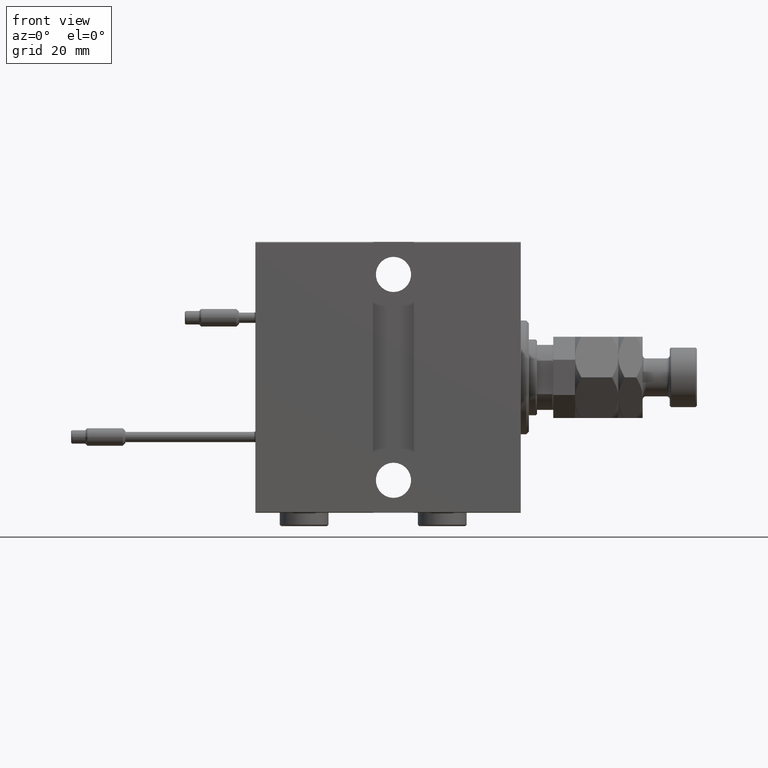
[diagram: clean part render]
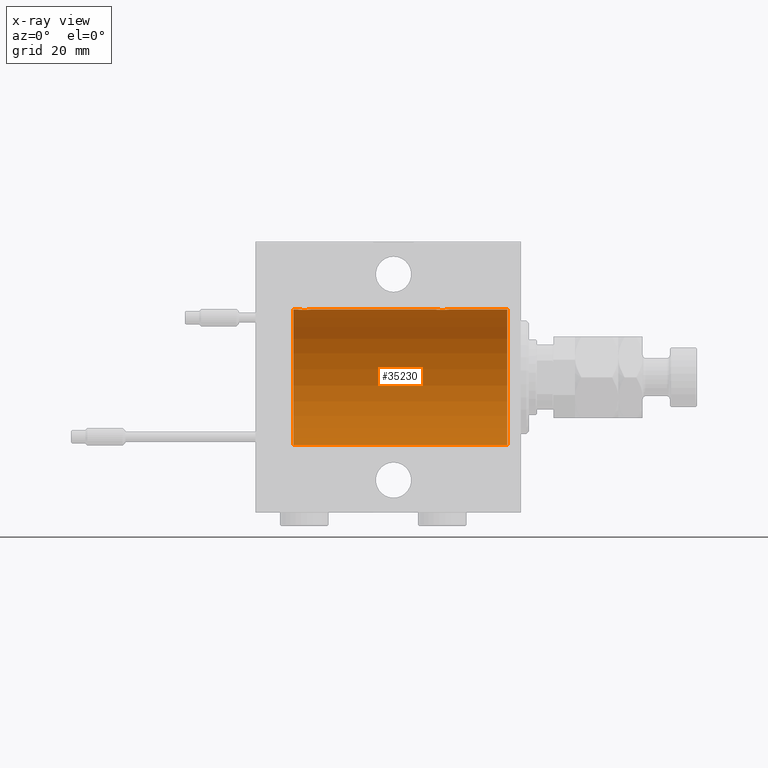
[diagram: x-ray — body ghosted, one internal face saturated and labeled with its STEP entity id]
A machine part, front view, then the same camera in x-ray: the body is ghosted and one INTERNAL B-rep face — a face not visible from any outside direction — is saturated and labeled: STEP entity #35230.
In plain terms, the highlighted cylindrical surface (partial cylindrical patch) has radius 25 mm, axis along (1, 0, -0).
Its self-contained STEP definition (entity closure, byte-faithful):
#485 = CARTESIAN_POINT ( 'NONE',  ( 30.98538033717094464, -1.528152964861313023, 24.95362559291378801 ) ) ;
#1559 = CARTESIAN_POINT ( 'NONE',  ( 82.50000000000001421, 2.791216707898424283E-15, 25.00000000000000000 ) ) ;
#1817 = DIRECTION ( 'NONE',  ( -1.000000000000000000, 0.000000000000000000, 0.000000000000000000 ) ) ;
#1891 = ORIENTED_EDGE ( 'NONE', *, *, #47495, .F. ) ;
#3200 = CARTESIAN_POINT ( 'NONE',  ( 5.000000000000004441, 3.061616997868382254E-15, -25.00000000000000000 ) ) ;
#3447 = CARTESIAN_POINT ( 'NONE',  ( 28.35095609830904095, -2.419770561643911133, 24.88263927071751169 ) ) ;
#3454 = CARTESIAN_POINT ( 'NONE',  ( 77.50000000000001421, -1.940163953345817485E-23, 25.00000000000000000 ) ) ;
#5050 = CARTESIAN_POINT ( 'NONE',  ( 78.74616804575498463, -2.169003991399871989, 24.90589728951138682 ) ) ;
#5309 = CARTESIAN_POINT ( 'NONE',  ( 79.83293504821945419, -2.499872792855080572, 24.87469871246082675 ) ) ;
#5462 = DIRECTION ( 'NONE',  ( 0.000000000000000000, 0.000000000000000000, 1.000000000000000000 ) ) ;
#5646 = B_SPLINE_CURVE_WITH_KNOTS ( 'NONE', 3,
 ( #3454, #19795, #29168, #33982, #29435, #24889, #50051, #37996, #21927, #9337, #17641, #5050, #8543, #9076, #50318, #8804, #5309, #50582, #29957, #25683, #33716, #25158, #42007, #13629, #21389, #42283, #13893, #49779, #13369, #46299, #41215, #1559 ),
 .UNSPECIFIED., .F., .F.,
 ( 4, 2, 2, 2, 2, 2, 2, 2, 2, 2, 2, 2, 2, 2, 2, 4 ),
 ( 0.007821024441662294616, 0.008309723826317902753, 0.008798423210973510891, 0.009287122595629119029, 0.009775821980284727167, 0.01026452136494033530, 0.01075322074959594344, 0.01124192013425155158, 0.01173061951890715972, 0.01221931890356276786, 0.01270801828821837599, 0.01319671767287398413, 0.01368541705752959400, 0.01417411644218520041, 0.01466281582684080854, 0.01564021459615200921 ),
 .UNSPECIFIED. ) ;
#6952 = CARTESIAN_POINT ( 'NONE',  ( 26.50000000000001066, -0.1631750940176202591, 25.00000000000001066 ) ) ;
#8272 = CARTESIAN_POINT ( 'NONE',  ( 31.43349355239748988, -0.6588655613945876288, 24.99312727339970408 ) ) ;
#8543 = CARTESIAN_POINT ( 'NONE',  ( 78.88963203491135801, -2.245863995402899160, 24.89899750494197050 ) ) ;
#8804 = CARTESIAN_POINT ( 'NONE',  ( 79.67052319885733880, -2.483544361357268304, 24.87635491893502149 ) ) ;
#8922 = VECTOR ( 'NONE', #37474, 1000.000000000000000 ) ;
#9076 = CARTESIAN_POINT ( 'NONE',  ( 79.19211657594196652, -2.371528299825746089, 24.88734287464371420 ) ) ;
#9337 = CARTESIAN_POINT ( 'NONE',  ( 78.34616663850664509, -1.881857718844719640, 24.92933960374833902 ) ) ;
#9561 = CARTESIAN_POINT ( 'NONE',  ( 26.50000000000000355, -1.940558383798427991E-23, 25.00000000000000000 ) ) ;
#9569 = CARTESIAN_POINT ( 'NONE',  ( 31.50000000000000000, -3.363311788663921560E-15, 25.00000000000000000 ) ) ;
#10261 = ORIENTED_EDGE ( 'NONE', *, *, #45151, .T. ) ;
#12839 = LINE ( 'NONE', #45500, #8922 ) ;
#13093 = CARTESIAN_POINT ( 'NONE',  ( 31.50000000000000000, -3.363311788663921560E-15, 25.00000000000000000 ) ) ;
#13118 = CARTESIAN_POINT ( 'NONE',  ( 5.000000000000004441, 0.000000000000000000, 25.00000000000000000 ) ) ;
#13207 = ORIENTED_EDGE ( 'NONE', *, *, #42633, .T. ) ;
#13369 = CARTESIAN_POINT ( 'NONE',  ( 82.24606379094068132, -1.109818057797408608, 24.97580694515542277 ) ) ;
#13468 = DIRECTION ( 'NONE',  ( -1.000000000000000000, -0.000000000000000000, -0.000000000000000000 ) ) ;
#13629 = CARTESIAN_POINT ( 'NONE',  ( 81.52256774340189338, -1.989585286700241484, 24.92087098724765681 ) ) ;
#13860 = EDGE_CURVE ( 'NONE', #23024, #46909, #15385, .T. ) ;
#13893 = CARTESIAN_POINT ( 'NONE',  ( 81.98538033717099438, -1.528152964861306806, 24.95362559291379156 ) ) ;
#14294 = VERTEX_POINT ( 'NONE', #9569 ) ;
#15264 = CARTESIAN_POINT ( 'NONE',  ( 26.57985090779071413, -0.6480119923854232855, 24.99212088949390775 ) ) ;
#15385 = CIRCLE ( 'NONE', #51327, 25.00000000000000000 ) ;
#15834 = DIRECTION ( 'NONE',  ( -1.000000000000000000, 0.000000000000000000, 0.000000000000000000 ) ) ;
#16050 = CARTESIAN_POINT ( 'NONE',  ( 27.01250184165601453, -1.525407911884367085, 24.95379469572361941 ) ) ;
#16579 = CARTESIAN_POINT ( 'NONE',  ( 31.24606379094068132, -1.109818057797417712, 24.97580694515542632 ) ) ;
#17100 = CARTESIAN_POINT ( 'NONE',  ( 30.88185954148646317, -1.653834020452940479, 24.94550385189585739 ) ) ;
#17361 = CARTESIAN_POINT ( 'NONE',  ( 29.16323589638542302, -2.500125740978195843, 24.87467329022545570 ) ) ;
#17641 = CARTESIAN_POINT ( 'NONE',  ( 78.47463817756926119, -1.987446652080266496, 24.92104239223421303 ) ) ;
#18026 = VECTOR ( 'NONE', #13468, 1000.000000000000000 ) ;
#18688 = CARTESIAN_POINT ( 'NONE',  ( 84.00000000000000000, 0.000000000000000000, 0.000000000000000000 ) ) ;
#19388 = VECTOR ( 'NONE', #25873, 1000.000000000000000 ) ;
#19539 = CARTESIAN_POINT ( 'NONE',  ( 27.11587617213529100, -1.651251241585102836, 24.94567559498349141 ) ) ;
#19795 = CARTESIAN_POINT ( 'NONE',  ( 77.50000000000004263, -0.1631750940176218967, 25.00000000000000355 ) ) ;
#20077 = EDGE_LOOP ( 'NONE', ( #40749, #37586, #46266, #32966, #13207, #1891, #10261, #26867 ) ) ;
#20119 = CARTESIAN_POINT ( 'NONE',  ( 84.00000000000000000, 0.000000000000000000, 25.00000000000000000 ) ) ;
#21389 = CARTESIAN_POINT ( 'NONE',  ( 81.65121133559114242, -1.884161199660608688, 24.92916496727982434 ) ) ;
#21689 = AXIS2_PLACEMENT_3D ( 'NONE', #18688, #1817, #51368 ) ;
#21927 = CARTESIAN_POINT ( 'NONE',  ( 78.11587617213530166, -1.651251241585104834, 24.94567559498348785 ) ) ;
#23024 = VERTEX_POINT ( 'NONE', #3200 ) ;
#23832 = CARTESIAN_POINT ( 'NONE',  ( 28.19211657594193809, -2.371528299825748753, 24.88734287464371064 ) ) ;
#24468 = CARTESIAN_POINT ( 'NONE',  ( 84.00000000000000000, 0.000000000000000000, 25.00000000000000000 ) ) ;
#24889 = CARTESIAN_POINT ( 'NONE',  ( 77.75239748980452248, -1.106703319666886065, 24.97594585958023572 ) ) ;
#25158 = CARTESIAN_POINT ( 'NONE',  ( 81.10723845838413126, -2.247417070759893942, 24.89885693081947338 ) ) ;
#25683 = CARTESIAN_POINT ( 'NONE',  ( 80.64560666148635448, -2.420689345803754833, 24.88254961038874313 ) ) ;
#25873 = DIRECTION ( 'NONE',  ( -1.000000000000000000, -0.000000000000000000, -0.000000000000000000 ) ) ;
#26366 = CYLINDRICAL_SURFACE ( 'NONE', #38442, 25.00000000000000000 ) ;
#26867 = ORIENTED_EDGE ( 'NONE', *, *, #31621, .F. ) ;
#27849 = CARTESIAN_POINT ( 'NONE',  ( 27.47463817756919369, -1.987446652080264275, 24.92104239223420592 ) ) ;
#28008 = CARTESIAN_POINT ( 'NONE',  ( 82.50000000000001421, 2.791216707898424283E-15, 25.00000000000000000 ) ) ;
#28900 = CARTESIAN_POINT ( 'NONE',  ( 31.49999999999999289, -0.3305063766663730029, 25.00000000000000355 ) ) ;
#29160 = CARTESIAN_POINT ( 'NONE',  ( 30.65121133559111755, -1.884161199660619124, 24.92916496727982079 ) ) ;
#29168 = CARTESIAN_POINT ( 'NONE',  ( 77.51582159942344674, -0.3254210271412231181, 24.99840249400844883 ) ) ;
#29435 = CARTESIAN_POINT ( 'NONE',  ( 77.62784030591393503, -0.8058335233485491855, 24.98746277938383287 ) ) ;
#29799 = LINE ( 'NONE', #24468, #18026 ) ;
#29957 = CARTESIAN_POINT ( 'NONE',  ( 80.32596570039464723, -2.484007091859760763, 24.87630842367763861 ) ) ;
#30096 = FACE_OUTER_BOUND ( 'NONE', #20077, .T. ) ;
#30264 = CIRCLE ( 'NONE', #21689, 25.00000000000000000 ) ;
#31074 = VERTEX_POINT ( 'NONE', #47677 ) ;
#31204 = CARTESIAN_POINT ( 'NONE',  ( 84.00000000000000000, 0.000000000000000000, 25.00000000000000000 ) ) ;
#31596 = CARTESIAN_POINT ( 'NONE',  ( 26.62784030591392437, -0.8058335233485456328, 24.98746277938383287 ) ) ;
#31621 = EDGE_CURVE ( 'NONE', #47121, #52029, #38454, .T. ) ;
#31854 = CARTESIAN_POINT ( 'NONE',  ( 26.50000000000000355, -1.940558383798427991E-23, 25.00000000000000000 ) ) ;
#32966 = ORIENTED_EDGE ( 'NONE', *, *, #37894, .F. ) ;
#33444 = CARTESIAN_POINT ( 'NONE',  ( 28.83293504821939734, -2.499872792855082793, 24.87469871246082675 ) ) ;
#33716 = CARTESIAN_POINT ( 'NONE',  ( 80.80435660916305096, -2.372734907014170780, 24.88722742718433523 ) ) ;
#33908 = CARTESIAN_POINT ( 'NONE',  ( 84.00000000000000000, 0.000000000000000000, 25.00000000000000000 ) ) ;
#33982 = CARTESIAN_POINT ( 'NONE',  ( 77.57985090779074255, -0.6480119923854228414, 24.99212088949390775 ) ) ;
#35230 = ADVANCED_FACE ( 'NONE', ( #30096 ), #26366, .F. ) ;
#35401 = DIRECTION ( 'NONE',  ( 0.000000000000000000, 0.000000000000000000, 1.000000000000000000 ) ) ;
#35876 = CARTESIAN_POINT ( 'NONE',  ( 26.51582159942343608, -0.3254210271412226740, 24.99840249400844883 ) ) ;
#36466 = DIRECTION ( 'NONE',  ( -1.000000000000000000, -0.000000000000000000, -0.000000000000000000 ) ) ;
#36726 = LINE ( 'NONE', #20119, #37099 ) ;
#37099 = VECTOR ( 'NONE', #36466, 1000.000000000000000 ) ;
#37229 = VERTEX_POINT ( 'NONE', #9561 ) ;
#37474 = DIRECTION ( 'NONE',  ( -1.000000000000000000, -0.000000000000000000, -0.000000000000000000 ) ) ;
#37586 = ORIENTED_EDGE ( 'NONE', *, *, #45249, .T. ) ;
#37894 = EDGE_CURVE ( 'NONE', #37229, #46909, #29799, .T. ) ;
#37996 = CARTESIAN_POINT ( 'NONE',  ( 78.01250184165604651, -1.525407911884360201, 24.95379469572362297 ) ) ;
#38442 = AXIS2_PLACEMENT_3D ( 'NONE', #46179, #38662, #5462 ) ;
#38454 = LINE ( 'NONE', #33908, #19388 ) ;
#38662 = DIRECTION ( 'NONE',  ( -1.000000000000000000, -0.000000000000000000, -0.000000000000000000 ) ) ;
#40749 = ORIENTED_EDGE ( 'NONE', *, *, #43813, .F. ) ;
#40948 = CARTESIAN_POINT ( 'NONE',  ( 29.80435660916302254, -2.372734907014176553, 24.88722742718433878 ) ) ;
#41215 = CARTESIAN_POINT ( 'NONE',  ( 82.50000000000005684, -0.3305063766663752789, 25.00000000000000711 ) ) ;
#41739 = CARTESIAN_POINT ( 'NONE',  ( 30.52256774340189338, -1.989585286700246369, 24.92087098724766037 ) ) ;
#42007 = CARTESIAN_POINT ( 'NONE',  ( 81.25084023924057419, -2.170728182476715951, 24.90574631553725027 ) ) ;
#42283 = CARTESIAN_POINT ( 'NONE',  ( 81.88185954148649159, -1.653834020452929598, 24.94550385189585029 ) ) ;
#42633 = EDGE_CURVE ( 'NONE', #37229, #14294, #48624, .T. ) ;
#43813 = EDGE_CURVE ( 'NONE', #44652, #47121, #30264, .T. ) ;
#43911 = CARTESIAN_POINT ( 'NONE',  ( 26.82988709719075260, -1.252049606094339351, 24.96900299967626680 ) ) ;
#44180 = CARTESIAN_POINT ( 'NONE',  ( 27.74616804575497042, -2.169003991399871989, 24.90589728951139037 ) ) ;
#44652 = VERTEX_POINT ( 'NONE', #52554 ) ;
#44974 = CARTESIAN_POINT ( 'NONE',  ( 30.10723845838410284, -2.247417070759899271, 24.89885693081946272 ) ) ;
#45151 = EDGE_CURVE ( 'NONE', #31074, #52029, #5646, .T. ) ;
#45235 = CARTESIAN_POINT ( 'NONE',  ( 31.16827641493957302, -1.255214705003182774, 24.96884293994578385 ) ) ;
#45249 = EDGE_CURVE ( 'NONE', #44652, #23024, #12839, .T. ) ;
#45500 = CARTESIAN_POINT ( 'NONE',  ( 84.00000000000000000, 3.061616997868382254E-15, -25.00000000000000000 ) ) ;
#46179 = CARTESIAN_POINT ( 'NONE',  ( 84.00000000000000000, 0.000000000000000000, 0.000000000000000000 ) ) ;
#46266 = ORIENTED_EDGE ( 'NONE', *, *, #13860, .T. ) ;
#46299 = CARTESIAN_POINT ( 'NONE',  ( 82.43349355239749343, -0.6588655613945794132, 24.99312727339970053 ) ) ;
#46909 = VERTEX_POINT ( 'NONE', #13118 ) ;
#47121 = VERTEX_POINT ( 'NONE', #31204 ) ;
#47495 = EDGE_CURVE ( 'NONE', #31074, #14294, #36726, .T. ) ;
#47677 = CARTESIAN_POINT ( 'NONE',  ( 77.50000000000001421, -1.940163953345817485E-23, 25.00000000000000000 ) ) ;
#47931 = CARTESIAN_POINT ( 'NONE',  ( 26.75239748980448695, -1.106703319666882956, 24.97594585958023217 ) ) ;
#48195 = CARTESIAN_POINT ( 'NONE',  ( 27.34616663850662377, -1.881857718844717642, 24.92933960374833902 ) ) ;
#48624 = B_SPLINE_CURVE_WITH_KNOTS ( 'NONE', 3,
 ( #31854, #6952, #35876, #15264, #31596, #47931, #43911, #16050, #19539, #48195, #27849, #44180, #48716, #23832, #3447, #52476, #33444, #17361, #49253, #49772, #40948, #44974, #53012, #41739, #29160, #17100, #485, #45235, #16579, #8272, #28900, #13093 ),
 .UNSPECIFIED., .F., .F.,
 ( 4, 2, 2, 2, 2, 2, 2, 2, 2, 2, 2, 2, 2, 2, 2, 4 ),
 ( 0.007821024441662273799, 0.008309723826317880202, 0.008798423210973484870, 0.009287122595629091273, 0.009775821980284697676, 0.01026452136494030234, 0.01075322074959590701, 0.01124192013425151342, 0.01173061951890711982, 0.01221931890356272449, 0.01270801828821833263, 0.01319671767287393729, 0.01368541705752954196, 0.01417411644218514837, 0.01466281582684075477, 0.01564021459615196757 ),
 .UNSPECIFIED. ) ;
#48716 = CARTESIAN_POINT ( 'NONE',  ( 27.88963203491136866, -2.245863995402901825, 24.89899750494197761 ) ) ;
#49253 = CARTESIAN_POINT ( 'NONE',  ( 29.32596570039459749, -2.484007091859766092, 24.87630842367763506 ) ) ;
#49772 = CARTESIAN_POINT ( 'NONE',  ( 29.64560666148631896, -2.420689345803761938, 24.88254961038873958 ) ) ;
#49779 = CARTESIAN_POINT ( 'NONE',  ( 82.16827641493958367, -1.255214705003175446, 24.96884293994578030 ) ) ;
#50051 = CARTESIAN_POINT ( 'NONE',  ( 77.82988709719073483, -1.252049606094332024, 24.96900299967626680 ) ) ;
#50318 = CARTESIAN_POINT ( 'NONE',  ( 79.35095609830904095, -2.419770561643906248, 24.88263927071751169 ) ) ;
#50582 = CARTESIAN_POINT ( 'NONE',  ( 80.16323589638544433, -2.500125740978193178, 24.87467329022545925 ) ) ;
#51327 = AXIS2_PLACEMENT_3D ( 'NONE', #52526, #15834, #35401 ) ;
#51368 = DIRECTION ( 'NONE',  ( 0.000000000000000000, 0.000000000000000000, 1.000000000000000000 ) ) ;
#52029 = VERTEX_POINT ( 'NONE', #28008 ) ;
#52476 = CARTESIAN_POINT ( 'NONE',  ( 28.67052319885731393, -2.483544361357271413, 24.87635491893501438 ) ) ;
#52526 = CARTESIAN_POINT ( 'NONE',  ( 5.000000000000004441, 0.000000000000000000, 0.000000000000000000 ) ) ;
#52554 = CARTESIAN_POINT ( 'NONE',  ( 84.00000000000000000, 3.061616997868382254E-15, -25.00000000000000000 ) ) ;
#53012 = CARTESIAN_POINT ( 'NONE',  ( 30.25084023924055643, -2.170728182476721280, 24.90574631553725027 ) ) ;